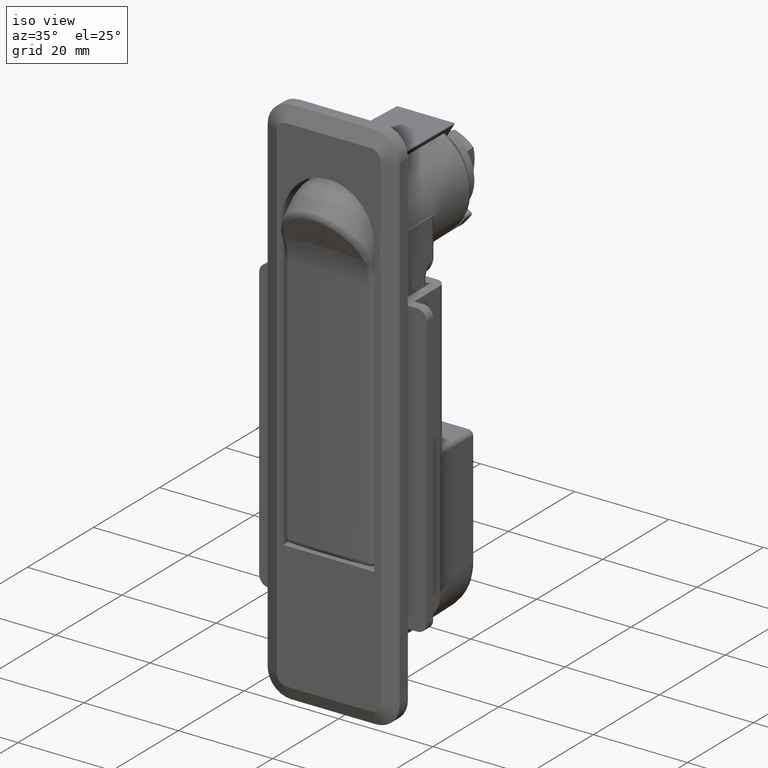
[diagram: clean part render]
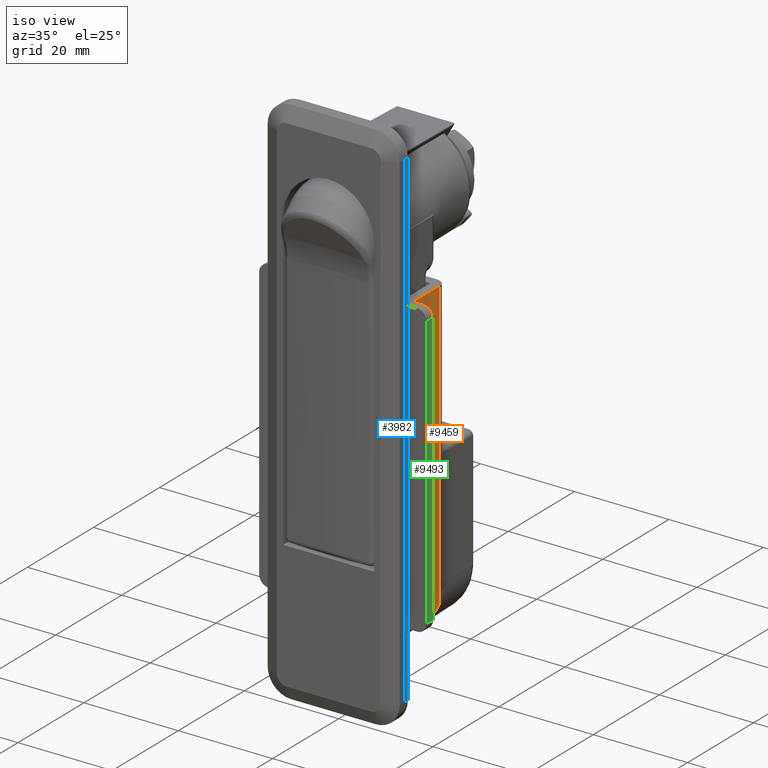
[diagram: same view with three faces highlighted in distinct colors, each labeled with its STEP entity id]
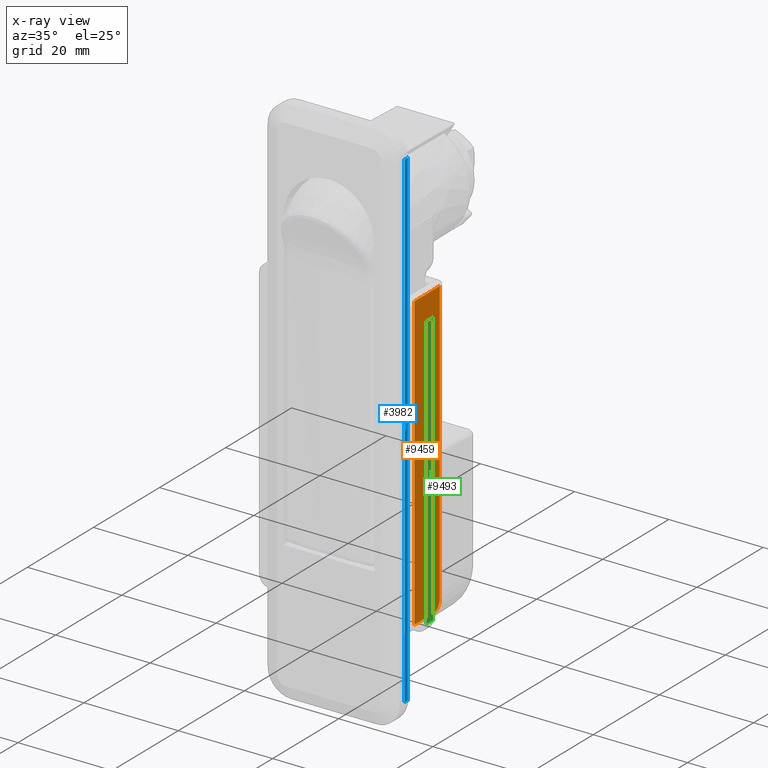
[diagram: x-ray of the same camera — body ghosted, the three highlighted faces saturated]
A machine part, iso view with three faces highlighted in distinct colors.
The next image is the same camera in x-ray (body ghosted, the three faces saturated) — at least one of them is partly hidden behind the body in this view.
Their STEP definitions:

[orange] entity #9459 — the highlighted face is a freeform B-spline surface patch.
#8896=CARTESIAN_POINT('',(13.750000000000000,3.299994665527350,-74.500000000000000));
#8897=VERTEX_POINT('',#8896);
#8938=CARTESIAN_POINT('',(13.750000000000000,8.999994665527339,-74.500000000000000));
#8939=VERTEX_POINT('',#8938);
#8945=CARTESIAN_POINT('',(13.750000000000000,3.299994665527350,-74.500000000000000));
#8946=CARTESIAN_POINT('',(13.750000000000000,8.999994665527339,-74.500000000000000));
#8947=QUASI_UNIFORM_CURVE('',1,(#8945,#8946),.UNSPECIFIED.,.F.,.U.);
#8948=EDGE_CURVE('',#8897,#8939,#8947,.T.);
#9053=CARTESIAN_POINT('',(13.750000000000000,10.999994665527341,-44.500000000000000));
#9054=VERTEX_POINT('',#9053);
#9055=CARTESIAN_POINT('',(13.750000000000000,10.999994665527341,-12.500000000000000));
#9056=VERTEX_POINT('',#9055);
#9057=CARTESIAN_POINT('',(13.750000000000000,10.999994665527341,-44.500000000000000));
#9058=CARTESIAN_POINT('',(13.750000000000000,10.999994665527341,-12.500000000000000));
#9059=QUASI_UNIFORM_CURVE('',1,(#9057,#9058),.UNSPECIFIED.,.F.,.U.);
#9060=EDGE_CURVE('',#9054,#9056,#9059,.T.);
#9139=CARTESIAN_POINT('',(13.750000000000000,10.999994665527341,-72.500000000000000));
#9140=VERTEX_POINT('',#9139);
#9141=CARTESIAN_POINT('',(13.750000000000000,8.999994665527339,-74.500000000000000));
#9142=CARTESIAN_POINT('',(13.750000000000011,9.278229396523230,-74.500318266598825));
#9143=CARTESIAN_POINT('',(13.749999999999980,9.703306987304174,-74.409753245435539));
#9144=CARTESIAN_POINT('',(13.750000000000020,10.272326284627370,-74.078149319170166));
#9145=CARTESIAN_POINT('',(13.749999999999980,10.673086422330130,-73.657276487436022));
#9146=CARTESIAN_POINT('',(13.750000000000030,10.941709930188139,-73.089013719062294));
#9147=CARTESIAN_POINT('',(13.749999999999980,11.000074160186120,-72.696354879244311));
#9148=CARTESIAN_POINT('',(13.750000000000000,10.999994665527341,-72.500000000000000));
#9149=B_SPLINE_CURVE_WITH_KNOTS('',3,(#9141,#9142,#9143,#9144,#9145,#9146,#9147,#9148),.UNSPECIFIED.,.F.,.U.,(4,1,1,1,1,4),(0.000000245822504,0.834509321796322,1.276336686422059,1.963538902262867,2.552610025859205,3.141671488692611),.UNSPECIFIED.);
#9150=EDGE_CURVE('',#8939,#9140,#9149,.T.);
#9342=CARTESIAN_POINT('',(13.750000000000000,10.999994665527341,-72.500000000000000));
#9343=CARTESIAN_POINT('',(13.750000000000000,10.999994665527341,-44.500000000000000));
#9344=QUASI_UNIFORM_CURVE('',1,(#9342,#9343),.UNSPECIFIED.,.F.,.U.);
#9345=EDGE_CURVE('',#9140,#9054,#9344,.T.);
#9386=CARTESIAN_POINT('',(13.750000000000000,3.299994665527350,-12.500000000000000));
#9387=VERTEX_POINT('',#9386);
#9393=CARTESIAN_POINT('',(13.750000000000000,3.299994665527350,-12.500000000000000));
#9394=CARTESIAN_POINT('',(13.750000000000000,10.999994665527341,-12.500000000000000));
#9395=QUASI_UNIFORM_CURVE('',1,(#9393,#9394),.UNSPECIFIED.,.F.,.U.);
#9396=EDGE_CURVE('',#9387,#9056,#9395,.T.);
#9442=CARTESIAN_POINT('',(13.750000000000000,2.915379680451451,-9.403100120168032));
#9443=CARTESIAN_POINT('',(13.750000000000000,2.915379680451451,-77.596901542801547));
#9444=CARTESIAN_POINT('',(13.750000000000000,11.384609857133340,-9.403100120168032));
#9445=CARTESIAN_POINT('',(13.750000000000000,11.384609857133340,-77.596901542801547));
#9446=B_SPLINE_SURFACE_WITH_KNOTS('',1,1,((#9442,#9444),(#9443,#9445)),.UNSPECIFIED.,.F.,.F.,.U.,(2,2),(2,2),(0.0,68.193801422633513),(0.0,8.469230176681890),.UNSPECIFIED.);
#9447=ORIENTED_EDGE('',*,*,#8948,.T.);
#9448=ORIENTED_EDGE('',*,*,#9150,.T.);
#9449=ORIENTED_EDGE('',*,*,#9345,.T.);
#9450=ORIENTED_EDGE('',*,*,#9060,.T.);
#9451=ORIENTED_EDGE('',*,*,#9396,.F.);
#9452=CARTESIAN_POINT('',(13.750000000000000,3.299994665527350,-74.500000000000000));
#9453=CARTESIAN_POINT('',(13.750000000000000,3.299994665527350,-12.500000000000000));
#9454=QUASI_UNIFORM_CURVE('',1,(#9452,#9453),.UNSPECIFIED.,.F.,.U.);
#9455=EDGE_CURVE('',#8897,#9387,#9454,.T.);
#9456=ORIENTED_EDGE('',*,*,#9455,.F.);
#9457=EDGE_LOOP('',(#9447,#9448,#9449,#9450,#9451,#9456));
#9458=FACE_OUTER_BOUND('',#9457,.T.);
#9459=ADVANCED_FACE('',(#9458),#9446,.T.);

[blue] entity #3982 — the highlighted face is a freeform B-spline surface patch.
#3523=CARTESIAN_POINT('',(14.0,0.0,-88.0));
#3524=VERTEX_POINT('',#3523);
#3538=CARTESIAN_POINT('',(14.0,0.0,16.0));
#3539=VERTEX_POINT('',#3538);
#3540=CARTESIAN_POINT('',(14.0,0.0,-88.0));
#3541=CARTESIAN_POINT('',(14.0,0.0,16.0));
#3542=QUASI_UNIFORM_CURVE('',1,(#3540,#3541),.UNSPECIFIED.,.F.,.U.);
#3543=EDGE_CURVE('',#3524,#3539,#3542,.T.);
#3938=CARTESIAN_POINT('',(14.0,1.0,16.0));
#3939=VERTEX_POINT('',#3938);
#3940=CARTESIAN_POINT('',(14.0,1.0,16.0));
#3941=CARTESIAN_POINT('',(14.0,0.0,16.0));
#3942=QUASI_UNIFORM_CURVE('',1,(#3940,#3941),.UNSPECIFIED.,.F.,.U.);
#3943=EDGE_CURVE('',#3939,#3539,#3942,.T.);
#3961=CARTESIAN_POINT('',(14.0,-0.049949998061806,21.194799798427820));
#3962=CARTESIAN_POINT('',(14.0,-0.049949998061806,-93.194802587925196));
#3963=CARTESIAN_POINT('',(14.0,1.049950024883896,21.194799798427820));
#3964=CARTESIAN_POINT('',(14.0,1.049950024883896,-93.194802587925196));
#3965=B_SPLINE_SURFACE_WITH_KNOTS('',1,1,((#3961,#3963),(#3962,#3964)),.UNSPECIFIED.,.F.,.F.,.U.,(2,2),(2,2),(0.0,114.389602386353000),(0.041708334948495,0.958291687403247),.UNSPECIFIED.);
#3966=ORIENTED_EDGE('',*,*,#3543,.F.);
#3967=CARTESIAN_POINT('',(14.0,1.0,-88.0));
#3968=VERTEX_POINT('',#3967);
#3969=CARTESIAN_POINT('',(14.0,1.0,-88.0));
#3970=CARTESIAN_POINT('',(14.0,0.0,-88.0));
#3971=QUASI_UNIFORM_CURVE('',1,(#3969,#3970),.UNSPECIFIED.,.F.,.U.);
#3972=EDGE_CURVE('',#3968,#3524,#3971,.T.);
#3973=ORIENTED_EDGE('',*,*,#3972,.F.);
#3974=CARTESIAN_POINT('',(14.0,1.0,-88.0));
#3975=CARTESIAN_POINT('',(14.0,1.0,16.0));
#3976=QUASI_UNIFORM_CURVE('',1,(#3974,#3975),.UNSPECIFIED.,.F.,.U.);
#3977=EDGE_CURVE('',#3968,#3939,#3976,.T.);
#3978=ORIENTED_EDGE('',*,*,#3977,.T.);
#3979=ORIENTED_EDGE('',*,*,#3943,.T.);
#3980=EDGE_LOOP('',(#3966,#3973,#3978,#3979));
#3981=FACE_OUTER_BOUND('',#3980,.T.);
#3982=ADVANCED_FACE('',(#3981),#3965,.T.);

[green] entity #9493 — the highlighted face is a freeform B-spline surface patch.
#9213=CARTESIAN_POINT('',(17.750000000000000,1.299994665527336,-14.500000000000000));
#9214=VERTEX_POINT('',#9213);
#9229=CARTESIAN_POINT('',(17.750000000000000,3.299994665527350,-14.500000000000000));
#9230=VERTEX_POINT('',#9229);
#9231=CARTESIAN_POINT('',(17.750000000000000,3.299994665527350,-14.500000000000000));
#9232=CARTESIAN_POINT('',(17.750000000000000,1.299994665527336,-14.500000000000000));
#9233=QUASI_UNIFORM_CURVE('',1,(#9231,#9232),.UNSPECIFIED.,.F.,.U.);
#9234=EDGE_CURVE('',#9230,#9214,#9233,.T.);
#9272=CARTESIAN_POINT('',(17.750000000000000,1.299994665527336,-72.500000000000000));
#9273=VERTEX_POINT('',#9272);
#9286=CARTESIAN_POINT('',(17.750000000000000,3.299994665527350,-72.500000000000000));
#9287=VERTEX_POINT('',#9286);
#9299=CARTESIAN_POINT('',(17.750000000000000,1.299994665527336,-72.500000000000000));
#9300=CARTESIAN_POINT('',(17.750000000000000,3.299994665527350,-72.500000000000000));
#9301=QUASI_UNIFORM_CURVE('',1,(#9299,#9300),.UNSPECIFIED.,.F.,.U.);
#9302=EDGE_CURVE('',#9273,#9287,#9301,.T.);
#9465=CARTESIAN_POINT('',(17.750000000000000,3.299994665527350,-72.500000000000000));
#9466=CARTESIAN_POINT('',(17.750000000000000,3.299994665527350,-14.500000000000000));
#9467=QUASI_UNIFORM_CURVE('',1,(#9465,#9466),.UNSPECIFIED.,.F.,.U.);
#9468=EDGE_CURVE('',#9287,#9230,#9467,.T.);
#9478=CARTESIAN_POINT('',(17.750000000000000,1.200094669403711,-11.602900112415259));
#9479=CARTESIAN_POINT('',(17.750000000000000,1.200094669403711,-75.397101443265967));
#9480=CARTESIAN_POINT('',(17.750000000000000,3.399894715295147,-11.602900112415259));
#9481=CARTESIAN_POINT('',(17.750000000000000,3.399894715295147,-75.397101443265967));
#9482=B_SPLINE_SURFACE_WITH_KNOTS('',1,1,((#9478,#9480),(#9479,#9481)),.UNSPECIFIED.,.F.,.F.,.U.,(2,2),(2,2),(0.0,63.794201330850719),(0.0,2.199800045891436),.UNSPECIFIED.);
#9483=CARTESIAN_POINT('',(17.750000000000000,1.299994665527336,-72.500000000000000));
#9484=CARTESIAN_POINT('',(17.750000000000000,1.299994665527336,-14.500000000000000));
#9485=QUASI_UNIFORM_CURVE('',1,(#9483,#9484),.UNSPECIFIED.,.F.,.U.);
#9486=EDGE_CURVE('',#9273,#9214,#9485,.T.);
#9487=ORIENTED_EDGE('',*,*,#9486,.F.);
#9488=ORIENTED_EDGE('',*,*,#9302,.T.);
#9489=ORIENTED_EDGE('',*,*,#9468,.T.);
#9490=ORIENTED_EDGE('',*,*,#9234,.T.);
#9491=EDGE_LOOP('',(#9487,#9488,#9489,#9490));
#9492=FACE_OUTER_BOUND('',#9491,.T.);
#9493=ADVANCED_FACE('',(#9492),#9482,.T.);